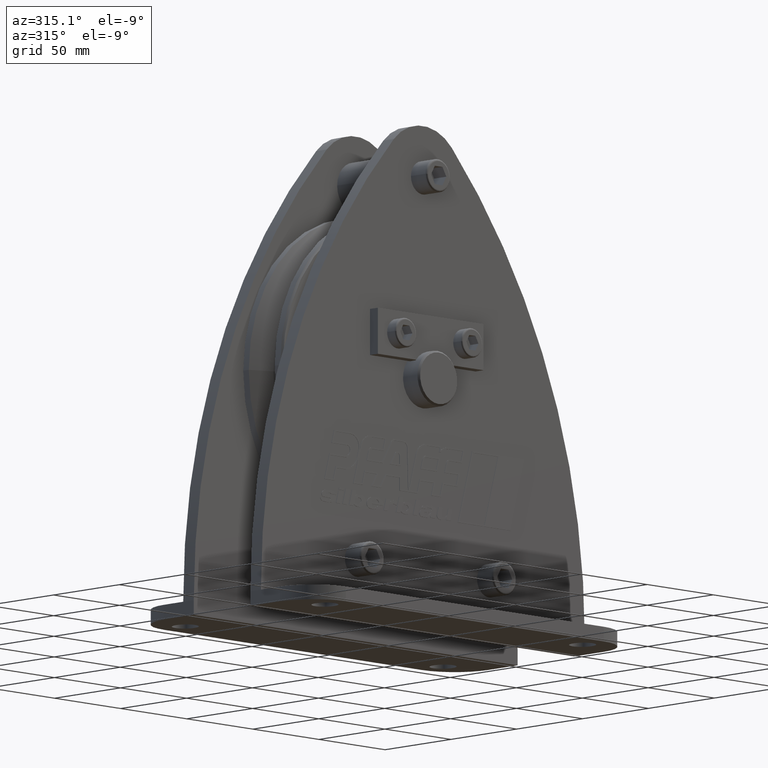
[diagram: clean part render]
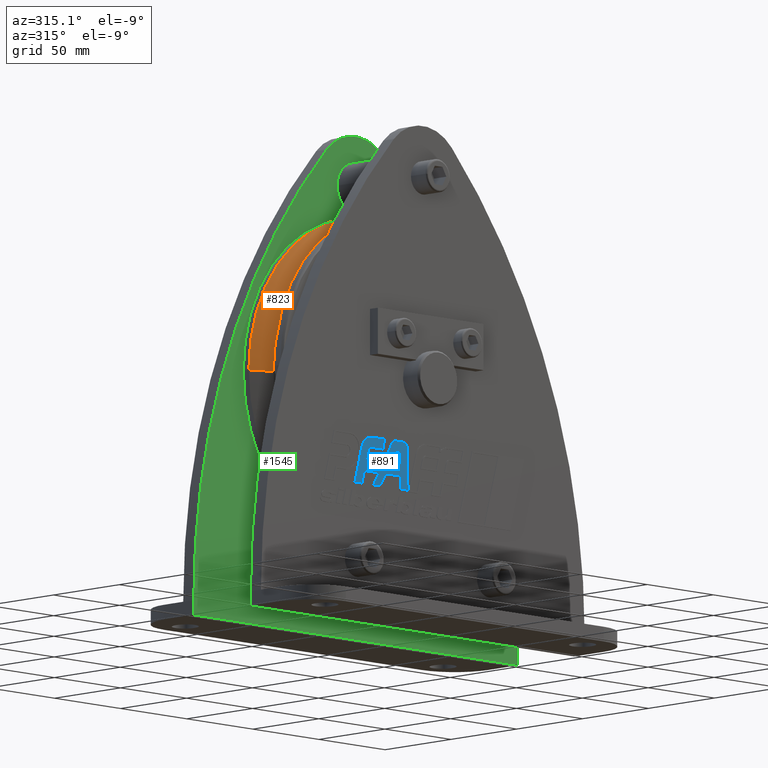
[diagram: same view with three faces highlighted in distinct colors, each labeled with its STEP entity id]
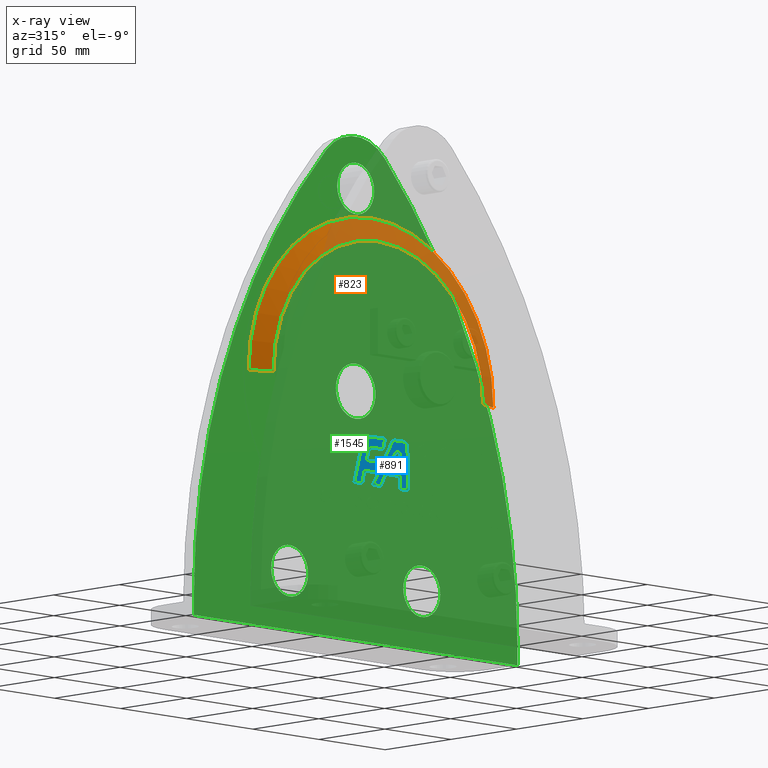
[diagram: x-ray of the same camera — body ghosted, the three highlighted faces saturated]
A machine part, auxiliary view with three faces highlighted in distinct colors.
The next image is the same camera in x-ray (body ghosted, the three faces saturated) — at least one of them is partly hidden behind the body in this view.
Their STEP definitions:

[orange] entity #823 — the highlighted conical surface has half-angle 67.5 deg.
#823=ADVANCED_FACE('',(#2233),#2234,.T.);
#2233=FACE_OUTER_BOUND('',#4319,.T.);
#2234=CONICAL_SURFACE('',#4320,85.98156,1.17809724555648);
#4319=EDGE_LOOP('',(#6869,#6870,#6871,#6872));
#4320=AXIS2_PLACEMENT_3D('',#6873,#6874,#6875);
#6869=ORIENTED_EDGE('',*,*,#12770,.F.);
#6870=ORIENTED_EDGE('',*,*,#12768,.T.);
#6871=ORIENTED_EDGE('',*,*,#12771,.F.);
#6872=ORIENTED_EDGE('',*,*,#12772,.F.);
#6873=CARTESIAN_POINT('',(0.0,7.13464825,0.0));
#6874=DIRECTION('',(-0.0,1.0,-0.0));
#6875=DIRECTION('',(1.0,0.0,0.0));
#12768=EDGE_CURVE('',#15482,#15484,#15486,.T.);
#12770=EDGE_CURVE('',#15482,#15488,#15489,.T.);
#12771=EDGE_CURVE('',#15490,#15484,#15491,.T.);
#12772=EDGE_CURVE('',#15488,#15490,#15492,.T.);
#15482=VERTEX_POINT('',#21884);
#15484=VERTEX_POINT('',#21887);
#15486=CIRCLE('',#21890,92.5);
#15488=VERTEX_POINT('',#21892);
#15489=LINE('',#21893,#21894);
#15490=VERTEX_POINT('',#21895);
#15491=LINE('',#21896,#21897);
#15492=CIRCLE('',#21898,79.46312);
#21884=CARTESIAN_POINT('',(92.5,9.8346745,0.0));
#21887=CARTESIAN_POINT('',(-92.5,9.8346745,1.1327982892113E-014));
#21890=AXIS2_PLACEMENT_3D('',#27447,#27448,#27449);
#21892=CARTESIAN_POINT('',(79.46312,4.434622,0.0));
#21893=CARTESIAN_POINT('',(85.98156,7.13464825,-1.05297042239696E-014));
#21894=VECTOR('',#27450,1.0);
#21895=CARTESIAN_POINT('',(-79.46312,4.434622,9.7314255558262E-015));
#21896=CARTESIAN_POINT('',(-85.98156,7.13464825,1.05297042239696E-014));
#21897=VECTOR('',#27451,1.0);
#21898=AXIS2_PLACEMENT_3D('',#27452,#27453,#27454);
#27447=CARTESIAN_POINT('',(0.0,9.8346745,0.0));
#27448=DIRECTION('',(0.0,-1.0,0.0));
#27449=DIRECTION('',(1.0,0.0,0.0));
#27450=DIRECTION('',(-0.923879532687438,-0.382683431939823,1.13142611250342E-016));
#27451=DIRECTION('',(-0.923879532687438,0.382683431939823,1.13142611250342E-016));
#27452=CARTESIAN_POINT('',(0.0,4.434622,0.0));
#27453=DIRECTION('',(0.0,-1.0,0.0));
#27454=DIRECTION('',(1.0,0.0,0.0));

[blue] entity #891 — the highlighted planar face has unit normal (0, -1, 0).
#891=ADVANCED_FACE('',(#2336,#2337),#2338,.T.);
#2336=FACE_BOUND('',#4422,.T.);
#2337=FACE_OUTER_BOUND('',#4423,.T.);
#2338=PLANE('',#4424);
#4422=EDGE_LOOP('',(#7181,#7182,#7183,#7184,#7185,#7186,#7187));
#4423=EDGE_LOOP('',(#7188,#7189,#7190,#7191,#7192,#7193,#7194,#7195,#7196,#7197,#7198,#7199,#7200,#7201,#7202,#7203,#7204,#7205,#7206,#7207,#7208,#7209));
#4424=AXIS2_PLACEMENT_3D('',#7210,#7211,#7212);
#7181=ORIENTED_EDGE('',*,*,#12905,.T.);
#7182=ORIENTED_EDGE('',*,*,#12910,.T.);
#7183=ORIENTED_EDGE('',*,*,#12914,.T.);
#7184=ORIENTED_EDGE('',*,*,#12918,.T.);
#7185=ORIENTED_EDGE('',*,*,#12922,.T.);
#7186=ORIENTED_EDGE('',*,*,#12926,.T.);
#7187=ORIENTED_EDGE('',*,*,#12929,.T.);
#7188=ORIENTED_EDGE('',*,*,#12932,.T.);
#7189=ORIENTED_EDGE('',*,*,#12933,.T.);
#7190=ORIENTED_EDGE('',*,*,#12934,.T.);
#7191=ORIENTED_EDGE('',*,*,#12935,.T.);
#7192=ORIENTED_EDGE('',*,*,#12936,.T.);
#7193=ORIENTED_EDGE('',*,*,#12937,.T.);
#7194=ORIENTED_EDGE('',*,*,#12938,.T.);
#7195=ORIENTED_EDGE('',*,*,#12939,.T.);
#7196=ORIENTED_EDGE('',*,*,#12940,.T.);
#7197=ORIENTED_EDGE('',*,*,#12941,.T.);
#7198=ORIENTED_EDGE('',*,*,#12942,.T.);
#7199=ORIENTED_EDGE('',*,*,#12943,.T.);
#7200=ORIENTED_EDGE('',*,*,#12944,.T.);
#7201=ORIENTED_EDGE('',*,*,#12945,.T.);
#7202=ORIENTED_EDGE('',*,*,#12946,.T.);
#7203=ORIENTED_EDGE('',*,*,#12947,.T.);
#7204=ORIENTED_EDGE('',*,*,#12948,.T.);
#7205=ORIENTED_EDGE('',*,*,#12949,.T.);
#7206=ORIENTED_EDGE('',*,*,#12950,.T.);
#7207=ORIENTED_EDGE('',*,*,#12951,.T.);
#7208=ORIENTED_EDGE('',*,*,#12952,.T.);
#7209=ORIENTED_EDGE('',*,*,#12953,.T.);
#7210=CARTESIAN_POINT('',(2.92292278416539E-005,-29.5,-28.4681245642744));
#7211=DIRECTION('',(0.0,-1.0,0.0));
#7212=DIRECTION('',(1.0,0.0,0.0));
#12905=EDGE_CURVE('',#15705,#15703,#15706,.T.);
#12910=EDGE_CURVE('',#15703,#15711,#15713,.T.);
#12914=EDGE_CURVE('',#15711,#15717,#15719,.T.);
#12918=EDGE_CURVE('',#15717,#15723,#15725,.T.);
#12922=EDGE_CURVE('',#15723,#15729,#15731,.T.);
#12926=EDGE_CURVE('',#15729,#15735,#15737,.T.);
#12929=EDGE_CURVE('',#15735,#15705,#15740,.T.);
#12932=EDGE_CURVE('',#15743,#15744,#15745,.T.);
#12933=EDGE_CURVE('',#15744,#15746,#15747,.T.);
#12934=EDGE_CURVE('',#15746,#15748,#15749,.T.);
#12935=EDGE_CURVE('',#15748,#15750,#15751,.T.);
#12936=EDGE_CURVE('',#15750,#15752,#15753,.T.);
#12937=EDGE_CURVE('',#15752,#15754,#15755,.T.);
#12938=EDGE_CURVE('',#15754,#15756,#15757,.T.);
#12939=EDGE_CURVE('',#15756,#15758,#15759,.T.);
#12940=EDGE_CURVE('',#15758,#15760,#15761,.T.);
#12941=EDGE_CURVE('',#15760,#15762,#15763,.T.);
#12942=EDGE_CURVE('',#15762,#15764,#15765,.T.);
#12943=EDGE_CURVE('',#15764,#15766,#15767,.T.);
#12944=EDGE_CURVE('',#15766,#15768,#15769,.T.);
#12945=EDGE_CURVE('',#15768,#15770,#15771,.T.);
#12946=EDGE_CURVE('',#15770,#15772,#15773,.T.);
#12947=EDGE_CURVE('',#15772,#15774,#15775,.T.);
#12948=EDGE_CURVE('',#15774,#15776,#15777,.T.);
#12949=EDGE_CURVE('',#15776,#15778,#15779,.T.);
#12950=EDGE_CURVE('',#15778,#15780,#15781,.T.);
#12951=EDGE_CURVE('',#15780,#15782,#15783,.T.);
#12952=EDGE_CURVE('',#15782,#15784,#15785,.T.);
#12953=EDGE_CURVE('',#15784,#15743,#15786,.T.);
#15703=VERTEX_POINT('',#22299);
#15705=VERTEX_POINT('',#22302);
#15706=CIRCLE('',#22303,2.3747492808);
#15711=VERTEX_POINT('',#22310);
#15713=LINE('',#22313,#22314);
#15717=VERTEX_POINT('',#22318);
#15719=CIRCLE('',#22321,0.045);
#15723=VERTEX_POINT('',#22326);
#15725=LINE('',#22329,#22330);
#15729=VERTEX_POINT('',#22334);
#15731=CIRCLE('',#22337,0.045);
#15735=VERTEX_POINT('',#22342);
#15737=LINE('',#22345,#22346);
#15740=CIRCLE('',#22349,2.3747492808);
#15743=VERTEX_POINT('',#22352);
#15744=VERTEX_POINT('',#22353);
#15745=CIRCLE('',#22354,2.98622070932938);
#15746=VERTEX_POINT('',#22355);
#15747=LINE('',#22356,#22357);
#15748=VERTEX_POINT('',#22358);
#15749=CIRCLE('',#22359,2.9862207336);
#15750=VERTEX_POINT('',#22360);
#15751=LINE('',#22361,#22362);
#15752=VERTEX_POINT('',#22363);
#15753=LINE('',#22364,#22365);
#15754=VERTEX_POINT('',#22366);
#15755=LINE('',#22367,#22368);
#15756=VERTEX_POINT('',#22369);
#15757=CIRCLE('',#22370,3.03456097488);
#15758=VERTEX_POINT('',#22371);
#15759=LINE('',#22372,#22373);
#15760=VERTEX_POINT('',#22374);
#15761=LINE('',#22375,#22376);
#15762=VERTEX_POINT('',#22377);
#15763=LINE('',#22378,#22379);
#15764=VERTEX_POINT('',#22380);
#15765=CIRCLE('',#22381,7.9348084392);
#15766=VERTEX_POINT('',#22382);
#15767=LINE('',#22383,#22384);
#15768=VERTEX_POINT('',#22385);
#15769=LINE('',#22386,#22387);
#15770=VERTEX_POINT('',#22388);
#15771=LINE('',#22389,#22390);
#15772=VERTEX_POINT('',#22391);
#15773=LINE('',#22392,#22393);
#15774=VERTEX_POINT('',#22394);
#15775=LINE('',#22395,#22396);
#15776=VERTEX_POINT('',#22397);
#15777=LINE('',#22398,#22399);
#15778=VERTEX_POINT('',#22400);
#15779=LINE('',#22401,#22402);
#15780=VERTEX_POINT('',#22403);
#15781=LINE('',#22404,#22405);
#15782=VERTEX_POINT('',#22406);
#15783=LINE('',#22407,#22408);
#15784=VERTEX_POINT('',#22409);
#15785=LINE('',#22410,#22411);
#15786=LINE('',#22412,#22413);
#22299=CARTESIAN_POINT('',(-16.7858891767381,-29.5,-42.8651356981511));
#22302=CARTESIAN_POINT('',(-19.1534521795398,-29.5,-40.4903977151566));
#22303=AXIS2_PLACEMENT_3D('',#27660,#27661,#27662);
#22310=CARTESIAN_POINT('',(-16.7858891767381,-29.5,-48.0792004808344));
#22313=CARTESIAN_POINT('',(-16.7858891767381,-29.5,-35.6666301312127));
#22314=VECTOR('',#27666,1.0);
#22318=CARTESIAN_POINT('',(-16.8308891767381,-29.5,-48.1242004808343));
#22321=AXIS2_PLACEMENT_3D('',#27671,#27672,#27673);
#22326=CARTESIAN_POINT('',(-24.8770119699937,-29.5,-48.1242004808343));
#22329=CARTESIAN_POINT('',(-8.41542997375512,-29.5,-48.1242004808343));
#22330=VECTOR('',#27676,1.0);
#22334=CARTESIAN_POINT('',(-24.9159030570454,-29.5,-48.0565623857746));
#22337=AXIS2_PLACEMENT_3D('',#27681,#27682,#27683);
#22342=CARTESIAN_POINT('',(-21.1986274661391,-29.5,-41.6704734406023));
#22345=CARTESIAN_POINT('',(-17.5047782957553,-29.5,-35.3246298852229));
#22346=VECTOR('',#27686,1.0);
#22349=AXIS2_PLACEMENT_3D('',#27690,#27691,#27692);
#22352=CARTESIAN_POINT('',(-11.9367152421314,-29.5,-37.82744674895));
#22353=CARTESIAN_POINT('',(-14.9216063783443,-29.5,-34.9303272729762));
#22354=AXIS2_PLACEMENT_3D('',#27693,#27694,#27695);
#22355=CARTESIAN_POINT('',(-20.8256696250062,-29.5,-34.9303272729762));
#22356=CARTESIAN_POINT('',(-10.4128201978892,-29.5,-34.9303272729762));
#22357=VECTOR('',#27696,1.0);
#22358=CARTESIAN_POINT('',(-23.4065000809185,-29.5,-36.4142735883629));
#22359=AXIS2_PLACEMENT_3D('',#27697,#27698,#27699);
#22360=CARTESIAN_POINT('',(-30.2241003110825,-29.5,-48.1265611544523));
#22361=CARTESIAN_POINT('',(-22.1260640455529,-29.5,-34.2145501446454));
#22362=VECTOR('',#27700,1.0);
#22363=CARTESIAN_POINT('',(-42.7761849756188,-29.5,-48.1265611544523));
#22364=CARTESIAN_POINT('',(-21.3880778731955,-29.5,-48.1265611544523));
#22365=VECTOR('',#27701,1.0);
#22366=CARTESIAN_POINT('',(-41.3327384195072,-29.5,-42.7395451954509));
#22367=CARTESIAN_POINT('',(-38.1644256829458,-29.5,-30.9152409268252));
#22368=VECTOR('',#27702,1.0);
#22369=CARTESIAN_POINT('',(-38.4015776094062,-29.5,-40.4903864204611));
#22370=AXIS2_PLACEMENT_3D('',#27703,#27704,#27705);
#22371=CARTESIAN_POINT('',(-30.3181181285265,-29.5,-40.4903864204611));
#22372=CARTESIAN_POINT('',(-15.1590444496493,-29.5,-40.4903864204611));
#22373=VECTOR('',#27706,1.0);
#22374=CARTESIAN_POINT('',(-28.8283047868589,-29.5,-34.930327262061));
#22375=CARTESIAN_POINT('',(-27.0549633803595,-29.5,-28.3121269463481));
#22376=VECTOR('',#27707,1.0);
#22377=CARTESIAN_POINT('',(-38.646018047712,-29.5,-34.9303272620608));
#22378=CARTESIAN_POINT('',(-19.3229944092421,-29.5,-34.9303272620608));
#22379=VECTOR('',#27708,1.0);
#22380=CARTESIAN_POINT('',(-46.3104544309795,-29.5,-40.8114561026756));
#22381=AXIS2_PLACEMENT_3D('',#27709,#27710,#27711);
#22382=CARTESIAN_POINT('',(-51.6388019295887,-29.5,-60.697119548536));
#22383=CARTESIAN_POINT('',(-45.8806046211107,-29.5,-39.2072347838615));
#22384=VECTOR('',#27712,1.0);
#22385=CARTESIAN_POINT('',(-46.1444560272192,-29.5,-60.697119548536));
#22386=CARTESIAN_POINT('',(-23.0722133989957,-29.5,-60.697119548536));
#22387=VECTOR('',#27713,1.0);
#22388=CARTESIAN_POINT('',(-44.2659983616881,-29.5,-53.6866202989364));
#22389=CARTESIAN_POINT('',(-39.6310554464493,-29.5,-36.3887783377065));
#22390=VECTOR('',#27714,1.0);
#22391=CARTESIAN_POINT('',(-33.4605527323847,-29.5,-53.6866202989364));
#22392=CARTESIAN_POINT('',(-16.7302617515784,-29.5,-53.6866202989364));
#22393=VECTOR('',#27715,1.0);
#22394=CARTESIAN_POINT('',(-37.5412911064787,-29.5,-60.697119548536));
#22395=CARTESIAN_POINT('',(-25.7846594694074,-29.5,-40.4998293246055));
#22396=VECTOR('',#27716,1.0);
#22397=CARTESIAN_POINT('',(-32.2738393584607,-29.5,-60.697119548536));
#22398=CARTESIAN_POINT('',(-16.1369050646164,-29.5,-60.697119548536));
#22399=VECTOR('',#27717,1.0);
#22400=CARTESIAN_POINT('',(-28.1931009843666,-29.5,-53.6866202989364));
#22401=CARTESIAN_POINT('',(-19.1433771469192,-29.5,-38.1396588533643));
#22402=VECTOR('',#27718,1.0);
#22403=CARTESIAN_POINT('',(-16.7858794309369,-29.5,-53.6866202989362));
#22404=CARTESIAN_POINT('',(-8.39292510085455,-29.5,-53.6866202989362));
#22405=VECTOR('',#27719,1.0);
#22406=CARTESIAN_POINT('',(-16.7858794309369,-29.5,-60.6971195383048));
#22407=CARTESIAN_POINT('',(-16.7858794309369,-29.5,-44.5826220512896));
#22408=VECTOR('',#27720,1.0);
#22409=CARTESIAN_POINT('',(-11.2540384010076,-29.5,-60.697119538305));
#22410=CARTESIAN_POINT('',(-5.62700458588988,-29.5,-60.697119538305));
#22411=VECTOR('',#27721,1.0);
#22412=CARTESIAN_POINT('',(-12.070968777082,-29.5,-33.3299536011223));
#22413=VECTOR('',#27722,1.0);
#27660=CARTESIAN_POINT('',(-19.160638457538,-29.5,-42.8651356981511));
#27661=DIRECTION('',(0.0,1.0,-0.0));
#27662=DIRECTION('',(-1.0,0.0,0.0));
#27666=DIRECTION('',(0.0,0.0,-1.0));
#27671=CARTESIAN_POINT('',(-16.8308891767381,-29.5,-48.0792004808344));
#27672=DIRECTION('',(-0.0,1.0,0.0));
#27673=DIRECTION('',(0.0,0.0,1.0));
#27676=DIRECTION('',(-1.0,-0.0,-0.0));
#27681=CARTESIAN_POINT('',(-24.8770119699937,-29.5,-48.0792004808344));
#27682=DIRECTION('',(-0.0,1.0,0.0));
#27683=DIRECTION('',(0.864246378926868,0.0,-0.503068779106591));
#27686=DIRECTION('',(0.503068779106606,0.0,0.864246378926859));
#27690=CARTESIAN_POINT('',(-19.1462590082558,-29.5,-42.8651356772809));
#27691=DIRECTION('',(-0.0,1.0,0.0));
#27692=DIRECTION('',(0.003087502165642,0.0,-0.999995233653829));
#27693=CARTESIAN_POINT('',(-14.9216063783443,-29.5,-37.9165479823055));
#27694=DIRECTION('',(0.0,-1.0,-0.0));
#27695=DIRECTION('',(-0.999554763948843,0.0,-0.029837457451531));
#27696=DIRECTION('',(-1.0,0.0,0.0));
#27697=CARTESIAN_POINT('',(-20.8256696250062,-29.5,-37.9165480065762));
#27698=DIRECTION('',(0.0,-1.0,0.0));
#27699=DIRECTION('',(0.0,0.0,-1.0));
#27700=DIRECTION('',(-0.503068785832822,-0.0,-0.864246375011599));
#27701=DIRECTION('',(-1.0,0.0,0.0));
#27702=DIRECTION('',(0.258819041804069,0.0,0.965925827172886));
#27703=CARTESIAN_POINT('',(-38.4015776094062,-29.5,-43.5249473953411));
#27704=DIRECTION('',(-0.0,1.0,0.0));
#27705=DIRECTION('',(0.0,0.0,1.0));
#27706=DIRECTION('',(1.0,0.0,0.0));
#27707=DIRECTION('',(0.258819041910182,0.0,0.965925827144453));
#27708=DIRECTION('',(-1.0,0.0,0.0));
#27709=CARTESIAN_POINT('',(-38.646018047712,-29.5,-42.8651357012608));
#27710=DIRECTION('',(0.0,-1.0,0.0));
#27711=DIRECTION('',(0.0,0.0,-1.0));
#27712=DIRECTION('',(-0.258819046794495,-0.0,-0.965925825835705));
#27713=DIRECTION('',(1.0,0.0,0.0));
#27714=DIRECTION('',(0.258819051923797,0.0,0.965925824461313));
#27715=DIRECTION('',(1.0,0.0,0.0));
#27716=DIRECTION('',(-0.503068786003665,-0.0,-0.864246374912154));
#27717=DIRECTION('',(1.0,0.0,0.0));
#27718=DIRECTION('',(0.503068786003678,0.0,0.864246374912146));
#27719=DIRECTION('',(1.0,0.0,0.0));
#27720=DIRECTION('',(-0.0,-0.0,-1.0));
#27721=DIRECTION('',(1.0,0.0,0.0));
#27722=DIRECTION('',(-0.029837457451531,0.0,0.999554763948843));

[green] entity #1545 — the highlighted planar face has unit normal (0, 1, 0).
#1545=ADVANCED_FACE('',(#3350,#3351,#3352,#3353,#3354),#3355,.F.);
#3350=FACE_BOUND('',#5436,.T.);
#3351=FACE_BOUND('',#5437,.T.);
#3352=FACE_BOUND('',#5438,.T.);
#3353=FACE_BOUND('',#5439,.T.);
#3354=FACE_OUTER_BOUND('',#5440,.T.);
#3355=PLANE('',#5441);
#5436=EDGE_LOOP('',(#10289,#10290));
#5437=EDGE_LOOP('',(#10291,#10292));
#5438=EDGE_LOOP('',(#10293,#10294));
#5439=EDGE_LOOP('',(#10295,#10296,#10297));
#5440=EDGE_LOOP('',(#10298,#10299,#10300,#10301,#10302,#10303));
#5441=AXIS2_PLACEMENT_3D('',#10304,#10305,#10306);
#10289=ORIENTED_EDGE('',*,*,#14142,.T.);
#10290=ORIENTED_EDGE('',*,*,#12782,.T.);
#10291=ORIENTED_EDGE('',*,*,#14143,.T.);
#10292=ORIENTED_EDGE('',*,*,#12787,.T.);
#10293=ORIENTED_EDGE('',*,*,#14144,.T.);
#10294=ORIENTED_EDGE('',*,*,#12792,.T.);
#10295=ORIENTED_EDGE('',*,*,#12500,.T.);
#10296=ORIENTED_EDGE('',*,*,#14145,.T.);
#10297=ORIENTED_EDGE('',*,*,#12501,.T.);
#10298=ORIENTED_EDGE('',*,*,#14146,.F.);
#10299=ORIENTED_EDGE('',*,*,#14147,.F.);
#10300=ORIENTED_EDGE('',*,*,#14148,.F.);
#10301=ORIENTED_EDGE('',*,*,#14149,.F.);
#10302=ORIENTED_EDGE('',*,*,#14150,.F.);
#10303=ORIENTED_EDGE('',*,*,#14151,.F.);
#10304=CARTESIAN_POINT('',(-2.9229227836991E-005,21.5,-28.4681245642744));
#10305=DIRECTION('',(0.0,1.0,0.0));
#10306=DIRECTION('',(-1.0,0.0,0.0));
#12500=EDGE_CURVE('',#15035,#15033,#15036,.T.);
#12501=EDGE_CURVE('',#15029,#15035,#15037,.T.);
#12782=EDGE_CURVE('',#15504,#15501,#15505,.T.);
#12787=EDGE_CURVE('',#15513,#15510,#15514,.T.);
#12792=EDGE_CURVE('',#15522,#15519,#15523,.T.);
#14142=EDGE_CURVE('',#15501,#15504,#17528,.T.);
#14143=EDGE_CURVE('',#15510,#15513,#17529,.T.);
#14144=EDGE_CURVE('',#15519,#15522,#17530,.T.);
#14145=EDGE_CURVE('',#15033,#15029,#17531,.T.);
#14146=EDGE_CURVE('',#17532,#17533,#17534,.T.);
#14147=EDGE_CURVE('',#17535,#17532,#17536,.T.);
#14148=EDGE_CURVE('',#17537,#17535,#17538,.T.);
#14149=EDGE_CURVE('',#17539,#17537,#17540,.T.);
#14150=EDGE_CURVE('',#17541,#17539,#17542,.T.);
#14151=EDGE_CURVE('',#17533,#17541,#17543,.T.);
#15029=VERTEX_POINT('',#19707);
#15033=VERTEX_POINT('',#19712);
#15035=VERTEX_POINT('',#19715);
#15036=CIRCLE('',#19716,15.0);
#15037=CIRCLE('',#19717,15.0);
#15501=VERTEX_POINT('',#21909);
#15504=VERTEX_POINT('',#21913);
#15505=CIRCLE('',#21914,14.0);
#15510=VERTEX_POINT('',#21920);
#15513=VERTEX_POINT('',#21924);
#15514=CIRCLE('',#21925,14.0);
#15519=VERTEX_POINT('',#21931);
#15522=VERTEX_POINT('',#21935);
#15523=CIRCLE('',#21936,14.0);
#17528=CIRCLE('',#24842,14.0);
#17529=CIRCLE('',#24843,14.0);
#17530=CIRCLE('',#24844,14.0);
#17531=CIRCLE('',#24845,15.0);
#17532=VERTEX_POINT('',#24846);
#17533=VERTEX_POINT('',#24847);
#17534=LINE('',#24848,#24849);
#17535=VERTEX_POINT('',#24850);
#17536=LINE('',#24851,#24852);
#17537=VERTEX_POINT('',#24853);
#17538=CIRCLE('',#24854,375.000346192699);
#17539=VERTEX_POINT('',#24855);
#17540=CIRCLE('',#24856,30.0000000019999);
#17541=VERTEX_POINT('',#24857);
#17542=CIRCLE('',#24858,374.9999940129);
#17543=LINE('',#24859,#24860);
#19707=CARTESIAN_POINT('',(1.83697019872103E-015,21.5,-15.0));
#19712=CARTESIAN_POINT('',(-1.83697019872103E-015,21.5,15.0));
#19715=CARTESIAN_POINT('',(-15.0,21.5,0.0));
#19716=AXIS2_PLACEMENT_3D('',#27081,#27082,#27083);
#19717=AXIS2_PLACEMENT_3D('',#27084,#27085,#27086);
#21909=CARTESIAN_POINT('',(-36.0,21.5,-103.0));
#21913=CARTESIAN_POINT('',(-64.0,21.5,-103.0));
#21914=AXIS2_PLACEMENT_3D('',#27467,#27468,#27469);
#21920=CARTESIAN_POINT('',(64.0,21.5,-103.0));
#21924=CARTESIAN_POINT('',(36.0,21.5,-103.0));
#21925=AXIS2_PLACEMENT_3D('',#27475,#27476,#27477);
#21931=CARTESIAN_POINT('',(14.0,21.5,110.0));
#21935=CARTESIAN_POINT('',(-14.0,21.5,110.0));
#21936=AXIS2_PLACEMENT_3D('',#27483,#27484,#27485);
#24842=AXIS2_PLACEMENT_3D('',#29038,#29039,#29040);
#24843=AXIS2_PLACEMENT_3D('',#29041,#29042,#29043);
#24844=AXIS2_PLACEMENT_3D('',#29044,#29045,#29046);
#24845=AXIS2_PLACEMENT_3D('',#29047,#29048,#29049);
#24846=CARTESIAN_POINT('',(122.5,21.5,-135.0));
#24847=CARTESIAN_POINT('',(-122.5,21.5,-135.0));
#24848=CARTESIAN_POINT('',(122.5,21.5,-135.0));
#24849=VECTOR('',#29050,1.0);
#24850=CARTESIAN_POINT('',(122.499999999917,21.5,-126.999999999808));
#24851=CARTESIAN_POINT('',(122.5,21.5,-127.0));
#24852=VECTOR('',#29051,1.0);
#24853=CARTESIAN_POINT('',(21.9565217399796,21.5,128.725942039967));
#24854=AXIS2_PLACEMENT_3D('',#29052,#29053,#29054);
#24855=CARTESIAN_POINT('',(-21.9615710002342,21.5,128.720517579787));
#24856=AXIS2_PLACEMENT_3D('',#29055,#29056,#29057);
#24857=CARTESIAN_POINT('',(-122.4999518,21.5,-127.00012484));
#24858=AXIS2_PLACEMENT_3D('',#29058,#29059,#29060);
#24859=CARTESIAN_POINT('',(-122.5,21.5,-135.0));
#24860=VECTOR('',#29061,1.0);
#27081=CARTESIAN_POINT('',(0.0,21.5,0.0));
#27082=DIRECTION('',(0.0,1.0,0.0));
#27083=DIRECTION('',(-1.0,0.0,0.0));
#27084=CARTESIAN_POINT('',(0.0,21.5,0.0));
#27085=DIRECTION('',(0.0,1.0,0.0));
#27086=DIRECTION('',(-1.0,0.0,0.0));
#27467=CARTESIAN_POINT('',(-50.0,21.5,-103.0));
#27468=DIRECTION('',(-0.0,1.0,0.0));
#27469=DIRECTION('',(1.0,0.0,0.0));
#27475=CARTESIAN_POINT('',(50.0,21.5,-103.0));
#27476=DIRECTION('',(-0.0,1.0,0.0));
#27477=DIRECTION('',(1.0,0.0,0.0));
#27483=CARTESIAN_POINT('',(0.0,21.5,110.0));
#27484=DIRECTION('',(-0.0,1.0,0.0));
#27485=DIRECTION('',(1.0,0.0,0.0));
#29038=CARTESIAN_POINT('',(-50.0,21.5,-103.0));
#29039=DIRECTION('',(-0.0,1.0,0.0));
#29040=DIRECTION('',(1.0,0.0,0.0));
#29041=CARTESIAN_POINT('',(50.0,21.5,-103.0));
#29042=DIRECTION('',(-0.0,1.0,0.0));
#29043=DIRECTION('',(1.0,0.0,0.0));
#29044=CARTESIAN_POINT('',(0.0,21.5,110.0));
#29045=DIRECTION('',(-0.0,1.0,0.0));
#29046=DIRECTION('',(1.0,0.0,0.0));
#29047=CARTESIAN_POINT('',(0.0,21.5,0.0));
#29048=DIRECTION('',(0.0,1.0,0.0));
#29049=DIRECTION('',(-1.0,0.0,0.0));
#29050=DIRECTION('',(-1.0,0.0,0.0));
#29051=DIRECTION('',(0.0,0.0,-1.0));
#29052=CARTESIAN_POINT('',(-252.500298154599,21.5,-126.810187808699));
#29053=DIRECTION('',(-0.0,1.0,0.0));
#29054=DIRECTION('',(0.731884177391438,0.0,0.681429050513741));
#29055=CARTESIAN_POINT('',(-2.0000072709081E-009,21.5,108.2830666768));
#29056=DIRECTION('',(0.0,1.0,0.0));
#29057=DIRECTION('',(-0.732052366551655,0.0,0.681248363393353));
#29058=CARTESIAN_POINT('',(252.4999940157,21.5,-126.8099988731));
#29059=DIRECTION('',(0.0,1.0,0.0));
#29060=DIRECTION('',(-0.999999871474181,0.0,-0.000507002585573127));
#29061=DIRECTION('',(6.0250940208373E-006,0.0,0.999999999981849));